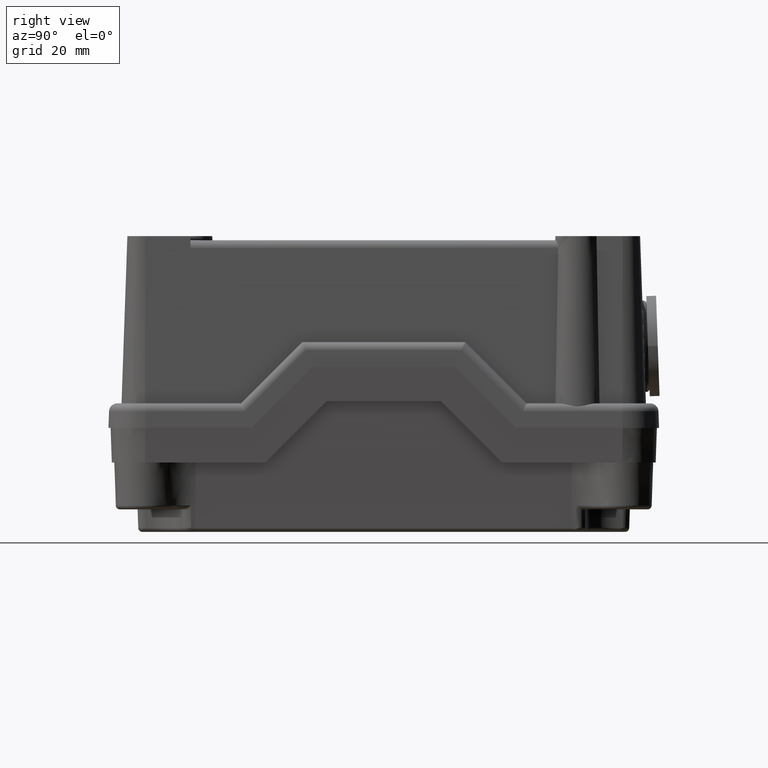
[diagram: clean part render]
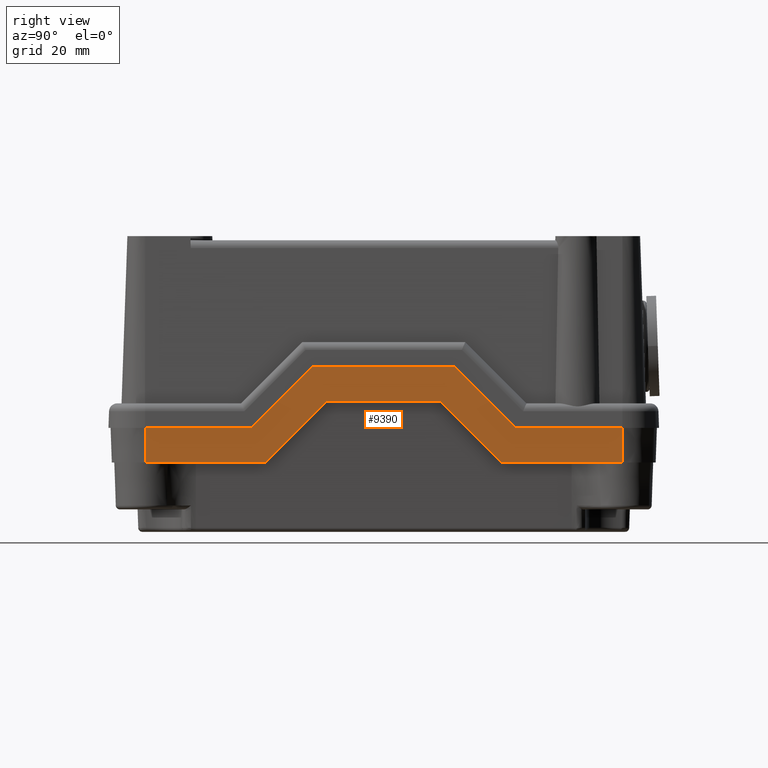
[diagram: same view with one face highlighted and labeled with its STEP entity id]
A machine part, right view. The second image highlights one B-rep face of the part: STEP entity #9390.
In plain terms, the highlighted planar face has unit normal (0.9994, -0, -0.0349).
Its self-contained STEP definition (entity closure, byte-faithful):
#8556=CARTESIAN_POINT('',(-8.419894933121421,5.177625671171939,8.499999999999963));
#8557=VERTEX_POINT('',#8556);
#8564=CARTESIAN_POINT('',(-8.419894933121404,-22.773415432838217,8.499999999999961));
#8565=VERTEX_POINT('',#8564);
#8566=CARTESIAN_POINT('',(-8.419894933121404,-22.773415432838217,8.499999999999961));
#8567=DIRECTION('',(0.0,1.0,0.0));
#8568=VECTOR('',#8567,27.951041104010155);
#8569=LINE('',#8566,#8568);
#8570=EDGE_CURVE('',#8565,#8557,#8569,.T.);
#8587=CARTESIAN_POINT('',(-7.896083390745217,20.177625671171931,23.499999999999986));
#8588=VERTEX_POINT('',#8587);
#8595=CARTESIAN_POINT('',(-8.419894933121421,5.177625671171939,8.499999999999963));
#8596=DIRECTION('',(0.024685188407831,0.706891307583163,0.706891307583164));
#8597=VECTOR('',#8596,21.219669614108675);
#8598=LINE('',#8595,#8597);
#8599=EDGE_CURVE('',#8557,#8588,#8598,.T.);
#8626=CARTESIAN_POINT('',(-7.896083390745179,-37.773415432838298,23.499999999999986));
#8627=VERTEX_POINT('',#8626);
#8636=CARTESIAN_POINT('',(-7.896083390745179,-37.773415432838298,23.499999999999986));
#8637=DIRECTION('',(-0.024685188407832,0.706891307583165,-0.706891307583162));
#8638=VECTOR('',#8637,21.219669614108739);
#8639=LINE('',#8636,#8638);
#8640=EDGE_CURVE('',#8627,#8565,#8639,.T.);
#8651=CARTESIAN_POINT('',(-7.896083390745168,-67.297894880833070,23.499999999999986));
#8652=VERTEX_POINT('',#8651);
#8653=CARTESIAN_POINT('',(-7.896083390745168,-67.297894880833070,23.499999999999986));
#8654=DIRECTION('',(0.0,1.0,0.0));
#8655=VECTOR('',#8654,29.524479447994771);
#8656=LINE('',#8653,#8655);
#8657=EDGE_CURVE('',#8652,#8627,#8656,.T.);
#8897=CARTESIAN_POINT('',(-7.896083390745194,49.702105119166902,23.499999999999986));
#8898=VERTEX_POINT('',#8897);
#8906=CARTESIAN_POINT('',(-7.896083390745217,20.177625671171931,23.499999999999986));
#8907=DIRECTION('',(0.0,1.0,0.0));
#8908=VECTOR('',#8907,29.524479447994970);
#8909=LINE('',#8906,#8908);
#8910=EDGE_CURVE('',#8588,#8898,#8909,.T.);
#8937=CARTESIAN_POINT('',(-8.192909931425024,-41.297894880833148,15.000000000000002));
#8938=VERTEX_POINT('',#8937);
#8939=CARTESIAN_POINT('',(-8.192909931425023,-67.297894880833070,15.0));
#8940=VERTEX_POINT('',#8939);
#8941=CARTESIAN_POINT('',(-8.192909931425024,-41.297894880833148,15.000000000000002));
#8942=DIRECTION('',(0.0,-1.0,0.0));
#8943=VECTOR('',#8942,25.999999999999922);
#8944=LINE('',#8941,#8943);
#8945=EDGE_CURVE('',#8938,#8940,#8944,.T.);
#9099=CARTESIAN_POINT('',(-8.192909931425035,23.702105119166845,14.999999999999998));
#9100=VERTEX_POINT('',#9099);
#9101=CARTESIAN_POINT('',(-8.716721473801243,8.702105119166854,-3.353870E-015));
#9102=VERTEX_POINT('',#9101);
#9103=CARTESIAN_POINT('',(-8.192909931425035,23.702105119166845,14.999999999999998));
#9104=DIRECTION('',(-0.024685188407831,-0.706891307583163,-0.706891307583164));
#9105=VECTOR('',#9104,21.219669614108660);
#9106=LINE('',#9103,#9105);
#9107=EDGE_CURVE('',#9100,#9102,#9106,.T.);
#9170=CARTESIAN_POINT('',(-8.716721473801247,-26.297894880833141,-7.640134E-015));
#9171=VERTEX_POINT('',#9170);
#9172=CARTESIAN_POINT('',(-8.716721473801247,-26.297894880833141,-7.640134E-015));
#9173=DIRECTION('',(0.024685188407832,-0.706891307583164,0.706891307583164));
#9174=VECTOR('',#9173,21.219669614108675);
#9175=LINE('',#9172,#9174);
#9176=EDGE_CURVE('',#9171,#8938,#9175,.T.);
#9201=CARTESIAN_POINT('',(-8.192909931425044,49.702105119166902,15.000000000000002));
#9202=VERTEX_POINT('',#9201);
#9203=CARTESIAN_POINT('',(-8.192909931425044,49.702105119166902,15.000000000000002));
#9204=DIRECTION('',(0.0,-1.0,0.0));
#9205=VECTOR('',#9204,26.000000000000057);
#9206=LINE('',#9203,#9205);
#9207=EDGE_CURVE('',#9202,#9100,#9206,.T.);
#9356=CARTESIAN_POINT('',(-8.716721473801240,-67.297894880833070,0.0));
#9357=DIRECTION('',(-0.999390827019096,-1.232830E-016,0.034899496702501));
#9358=DIRECTION('',(0.0,-1.0,0.0));
#9359=AXIS2_PLACEMENT_3D('',#9356,#9357,#9358);
#9360=PLANE('',#9359);
#9361=ORIENTED_EDGE('',*,*,#8599,.T.);
#9362=ORIENTED_EDGE('',*,*,#8910,.T.);
#9363=CARTESIAN_POINT('',(-8.192909931425044,49.702105119166902,15.000000000000002));
#9364=DIRECTION('',(0.034899496702500,0.0,0.999390827019096));
#9365=VECTOR('',#9364,8.505181126539968);
#9366=LINE('',#9363,#9365);
#9367=EDGE_CURVE('',#9202,#8898,#9366,.T.);
#9368=ORIENTED_EDGE('',*,*,#9367,.F.);
#9369=ORIENTED_EDGE('',*,*,#9207,.T.);
#9370=ORIENTED_EDGE('',*,*,#9107,.T.);
#9371=CARTESIAN_POINT('',(-8.716721473801243,8.702105119166854,-3.353870E-015));
#9372=DIRECTION('',(0.0,-1.0,0.0));
#9373=VECTOR('',#9372,34.999999999999993);
#9374=LINE('',#9371,#9373);
#9375=EDGE_CURVE('',#9102,#9171,#9374,.T.);
#9376=ORIENTED_EDGE('',*,*,#9375,.T.);
#9377=ORIENTED_EDGE('',*,*,#9176,.T.);
#9378=ORIENTED_EDGE('',*,*,#8945,.T.);
#9379=CARTESIAN_POINT('',(-8.192909931425023,-67.297894880833070,15.0));
#9380=DIRECTION('',(0.034899496702501,0.0,0.999390827019096));
#9381=VECTOR('',#9380,8.505181126539970);
#9382=LINE('',#9379,#9381);
#9383=EDGE_CURVE('',#8940,#8652,#9382,.T.);
#9384=ORIENTED_EDGE('',*,*,#9383,.T.);
#9385=ORIENTED_EDGE('',*,*,#8657,.T.);
#9386=ORIENTED_EDGE('',*,*,#8640,.T.);
#9387=ORIENTED_EDGE('',*,*,#8570,.T.);
#9388=EDGE_LOOP('',(#9361,#9362,#9368,#9369,#9370,#9376,#9377,#9378,#9384,#9385,#9386,#9387));
#9389=FACE_OUTER_BOUND('',#9388,.T.);
#9390=ADVANCED_FACE('',(#9389),#9360,.T.);